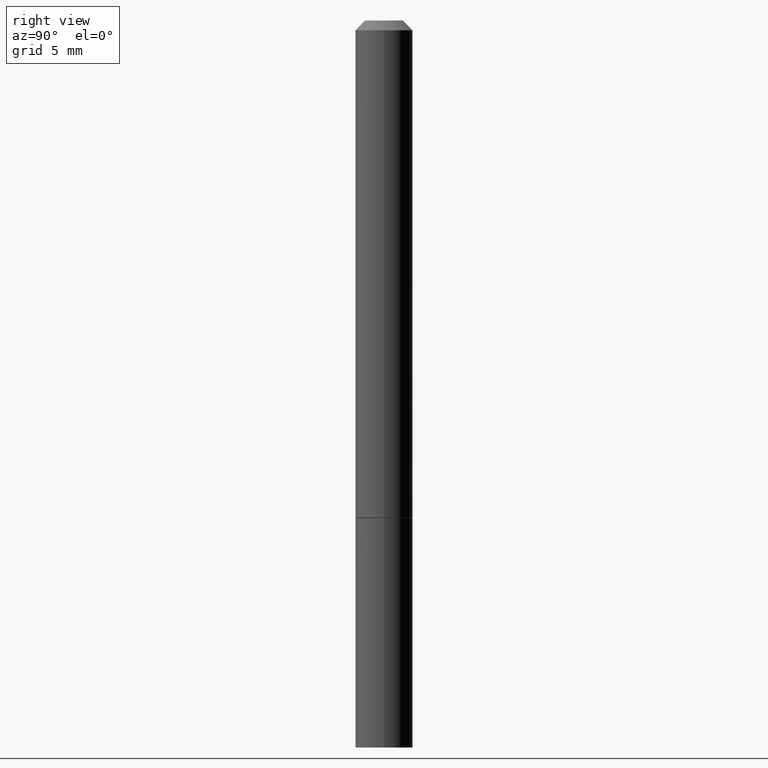
[diagram: clean part render]
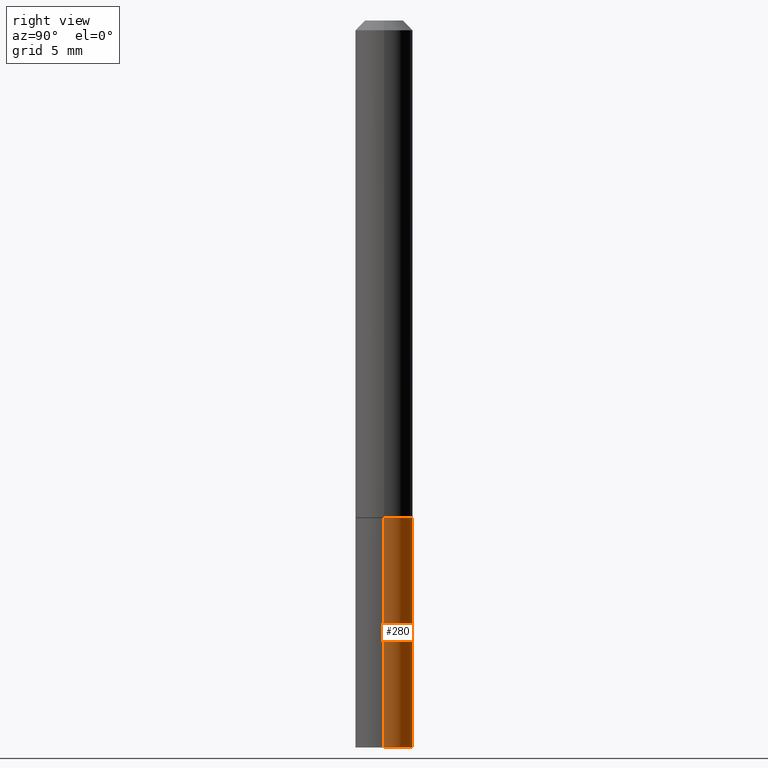
[diagram: same view with one face highlighted and labeled with its STEP entity id]
A machine part, right view. The second image highlights one B-rep face of the part: STEP entity #280.
In plain terms, the highlighted cylindrical surface (edge-blend (fillet) strip) has radius 1.4999 mm, axis along (-0, 0, 1).
Its self-contained STEP definition (entity closure, byte-faithful):
#4 = VERTEX_POINT ( 'NONE', #214 ) ;
#13 = ORIENTED_EDGE ( 'NONE', *, *, #166, .T. ) ;
#17 = CARTESIAN_POINT ( 'NONE',  ( 0.05904999999999999832, -4.123439461173740327E-16, 2.879382386107500220E-30 ) ) ;
#25 = CIRCLE ( 'NONE', #288, 0.05904999999999999832 ) ;
#53 = EDGE_CURVE ( 'NONE', #4, #87, #266, .T. ) ;
#62 = DIRECTION ( 'NONE',  ( -2.445468806185136597E-29, 3.491481338843145583E-15, 1.000000000000000000 ) ) ;
#64 = DIRECTION ( 'NONE',  ( -2.445468806185136877E-29, 3.491481338843145188E-15, 1.000000000000000000 ) ) ;
#84 = CARTESIAN_POINT ( 'NONE',  ( 3.658665880933582389E-29, -5.223605231043229660E-15, -1.496099999999999985 ) ) ;
#87 = VERTEX_POINT ( 'NONE', #271 ) ;
#91 = VERTEX_POINT ( 'NONE', #190 ) ;
#93 = CIRCLE ( 'NONE', #212, 0.05904999999999999832 ) ;
#110 = DIRECTION ( 'NONE',  ( -2.445468806185136597E-29, 3.491481338843145583E-15, 1.000000000000000000 ) ) ;
#115 = VERTEX_POINT ( 'NONE', #267 ) ;
#132 = DIRECTION ( 'NONE',  ( 1.000000000000000000, -6.982962677686273021E-15, 0.000000000000000000 ) ) ;
#144 = CARTESIAN_POINT ( 'NONE',  ( 0.000000000000000000, 0.000000000000000000, 0.000000000000000000 ) ) ;
#160 = ORIENTED_EDGE ( 'NONE', *, *, #188, .F. ) ;
#162 = DIRECTION ( 'NONE',  ( -2.445468806185136597E-29, 3.491481338843145583E-15, 1.000000000000000000 ) ) ;
#166 = EDGE_CURVE ( 'NONE', #4, #115, #93, .T. ) ;
#172 = DIRECTION ( 'NONE',  ( 1.000000000000000000, -6.982962677686266711E-15, 4.876176775795936353E-29 ) ) ;
#178 = DIRECTION ( 'NONE',  ( -2.445468806185136877E-29, 3.491481338843145188E-15, 1.000000000000000000 ) ) ;
#188 = EDGE_CURVE ( 'NONE', #87, #91, #25, .T. ) ;
#190 = CARTESIAN_POINT ( 'NONE',  ( -0.05904999999999999832, -3.979341853342139538E-15, -1.023699999999999832 ) ) ;
#212 = AXIS2_PLACEMENT_3D ( 'NONE', #84, #110, #132 ) ;
#214 = CARTESIAN_POINT ( 'NONE',  ( 0.05904999999999999832, -5.635949177160603791E-15, -1.496099999999999985 ) ) ;
#225 = VECTOR ( 'NONE', #64, 39.37007874015748143 ) ;
#232 = ORIENTED_EDGE ( 'NONE', *, *, #348, .T. ) ;
#266 = LINE ( 'NONE', #17, #325 ) ;
#267 = CARTESIAN_POINT ( 'NONE',  ( -0.05904999999999999832, -3.979341853342139538E-15, -1.496099999999999985 ) ) ;
#271 = CARTESIAN_POINT ( 'NONE',  ( 0.05904999999999999832, -3.986573392691101744E-15, -1.023699999999999832 ) ) ;
#279 = LINE ( 'NONE', #335, #225 ) ;
#280 = ADVANCED_FACE ( 'NONE', ( #360 ), #334, .T. ) ;
#288 = AXIS2_PLACEMENT_3D ( 'NONE', #297, #162, #332 ) ;
#297 = CARTESIAN_POINT ( 'NONE',  ( 2.503426416891724344E-29, -3.574229446573728402E-15, -1.023699999999999832 ) ) ;
#316 = EDGE_LOOP ( 'NONE', ( #13, #232, #160, #323 ) ) ;
#323 = ORIENTED_EDGE ( 'NONE', *, *, #53, .F. ) ;
#325 = VECTOR ( 'NONE', #178, 39.37007874015748143 ) ;
#332 = DIRECTION ( 'NONE',  ( 1.000000000000000000, -6.982962677686265133E-15, 0.000000000000000000 ) ) ;
#334 = CYLINDRICAL_SURFACE ( 'NONE', #355, 0.05904999999999999832 ) ;
#335 = CARTESIAN_POINT ( 'NONE',  ( -0.05904999999999999832, 4.195754854663391478E-16, -2.904631170795521892E-30 ) ) ;
#348 = EDGE_CURVE ( 'NONE', #115, #91, #279, .T. ) ;
#355 = AXIS2_PLACEMENT_3D ( 'NONE', #144, #62, #172 ) ;
#360 = FACE_OUTER_BOUND ( 'NONE', #316, .T. ) ;